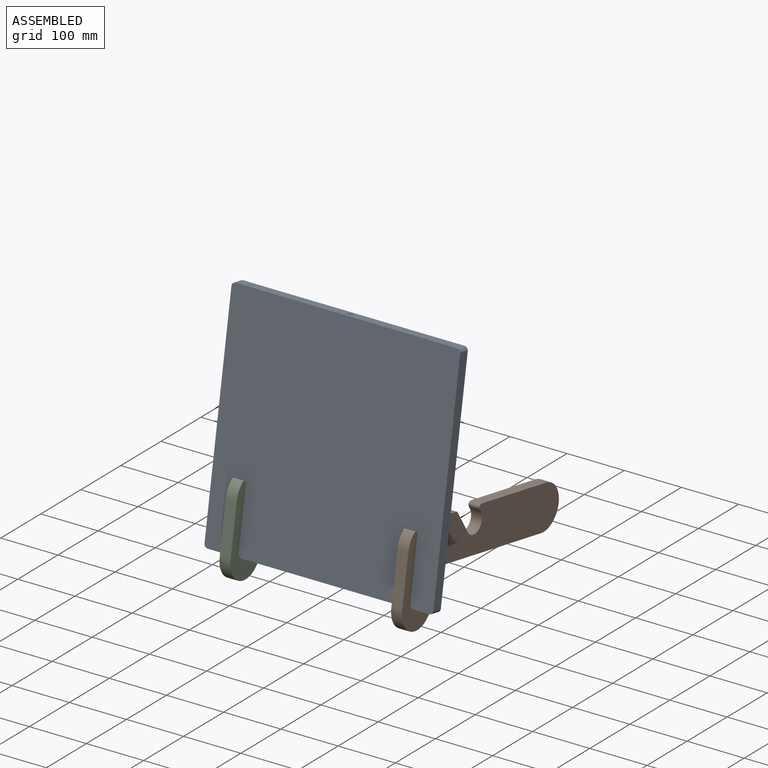
[diagram: assembled view]
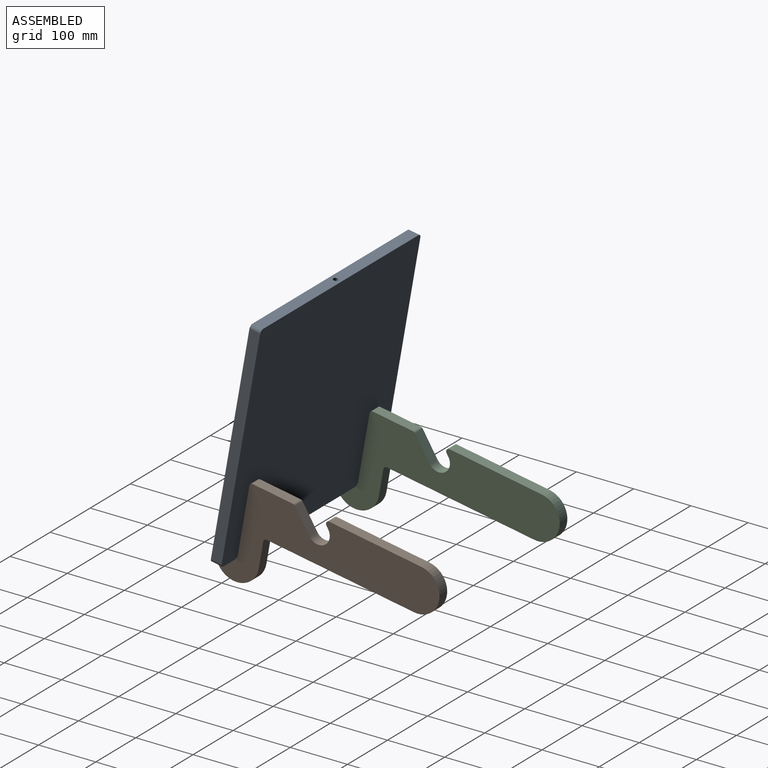
[diagram: assembled view, second angle]
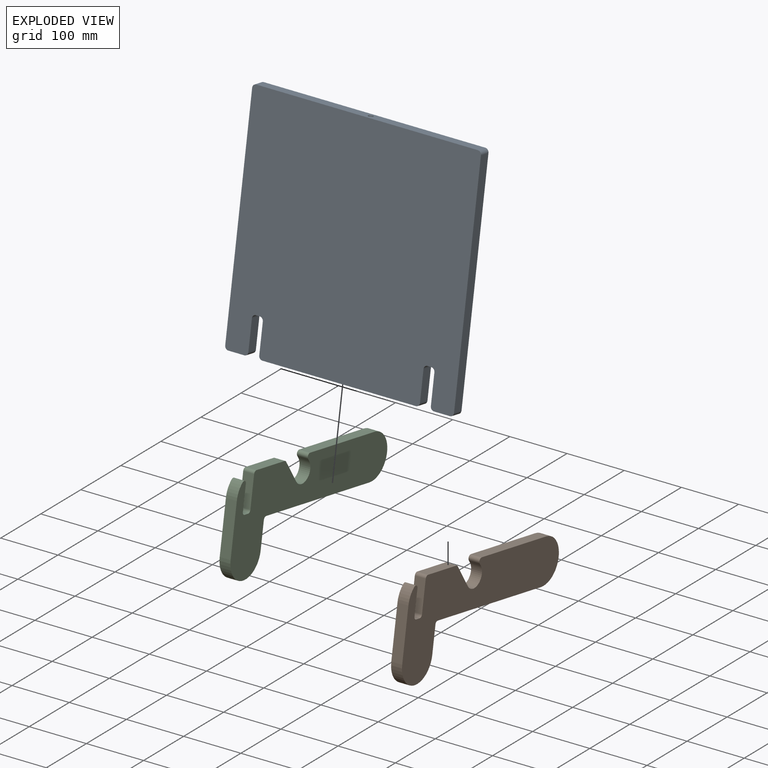
[diagram: exploded view]
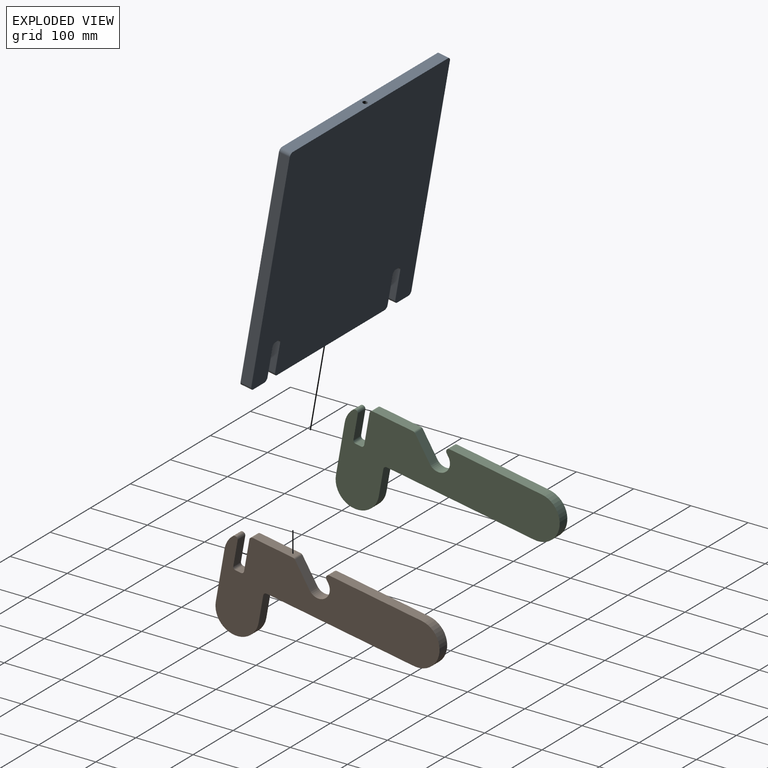
[diagram: exploded view, second angle]
ASSEMBLY  parts=3 mates=2
PART A: 28 faces, bbox 400x19.1x400 mm
  f0: cylinder r=6.35mm len=19.05mm, axis (0,1,0), area 190mm2, adj f1,f23,f24,f25
  f1: plane 50.8x19.05mm, normal (-1,0,0), area 967.7mm2, adj f0,f2,f24,f25
  f2: cylinder r=6.35mm len=19.05mm, axis (0,1,0), area 190mm2, adj f1,f3,f24,f25
  f3: plane 268.25x19.05mm, normal (0,0,-1), area 5110.2mm2, adj f2,f4,f24,f25
  f4: cylinder r=6.35mm len=19.05mm, axis (0,1,0), area 190mm2, adj f3,f5,f24,f25
  f5: plane 50.8x19.05mm, normal (1,0,0), area 967.7mm2, adj f4,f6,f24,f25
  f6: cylinder r=6.35mm len=19.05mm, axis (0,1,0), area 190mm2, adj f5,f7,f24,f25
  f7: plane 19.05x6.35mm, normal (0,0,-1), area 121mm2, adj f6,f8,f24,f25
  f8: cylinder r=6.35mm len=19.05mm, axis (0,1,0), area 190mm2, adj f7,f9,f24,f25
  f9: plane 50.8x19.05mm, normal (-1,0,0), area 967.7mm2, adj f8,f10,f24,f25
  f10: cylinder r=6.35mm len=19.05mm, axis (0,1,0), area 190mm2, adj f9,f11,f24,f25
  f11: plane 27.78x19.05mm, normal (0,0,-1), area 529.1mm2, adj f10,f12,f24,f25
  f12: cylinder r=6.35mm len=19.05mm, axis (0,1,0), area 190mm2, adj f11,f13,f24,f25
  f13: plane 387.3x19.05mm, normal (1,0,0), area 7378.1mm2, adj f12,f14,f24,f25
  f14: cylinder r=6.35mm len=19.05mm, axis (0,1,0), area 190mm2, adj f13,f15,f24,f25
  f15: plane 387.3x19.05mm, normal (0,0,1), area 7323.5mm2, adj f14,f16,f24,f25,f26
  f16: cylinder r=6.35mm len=19.05mm, axis (0,1,0), area 190mm2, adj f15,f17,f24,f25
  f17: plane 387.3x19.05mm, normal (-1,0,0), area 7378.1mm2, adj f16,f18,f24,f25
  f18: cylinder r=6.35mm len=19.05mm, axis (0,1,0), area 190mm2, adj f17,f19,f24,f25
  f19: plane 27.78x19.05mm, normal (0,0,-1), area 529.1mm2, adj f18,f20,f24,f25
  f20: cylinder r=6.35mm len=19.05mm, axis (0,1,0), area 190mm2, adj f19,f21,f24,f25
  f21: plane 50.8x19.05mm, normal (1,0,0), area 967.7mm2, adj f20,f22,f24,f25
  f22: cylinder r=6.35mm len=19.05mm, axis (0,1,0), area 190mm2, adj f21,f23,f24,f25
  f23: plane 19.05x6.35mm, normal (0,0,-1), area 121mm2, adj f0,f22,f24,f25
  f24: plane 400x400mm, normal (0,-1,0), area 157546mm2, adj f0,f1,f2,f3,f4,f5,f6,f7
  f25: plane 400x400mm, normal (0,1,0), area 157546mm2, adj f0,f1,f2,f3,f4,f5,f6,f7
  f26: cylinder r=4.17mm len=76.2mm, axis (0,0,1), area 1995.2mm2, adj f15,f27
  f27: plane 8.33x8.33mm, normal (0,0,1), area 54.6mm2, adj f26
PART B: 23 faces, bbox 19.1x387.6x164.2 mm
  f0: plane 42.7x19.05mm, normal (0,1,-0.09), area 816.5mm2, adj f1,f20,f21,f22
  f1: cylinder r=5.08mm len=19.05mm, axis (-1,0,0), area 231.3mm2, adj f0,f2,f21,f22
  f2: cylinder r=38.1mm len=25.02mm, axis (-1,0,0), area 545.3mm2, adj f1,f3,f21,f22
  f3: plane 88.56x19.05mm, normal (0,-1,0.09), area 1693.5mm2, adj f2,f4,f21,f22
  f4: cylinder r=38.1mm len=76.06mm, axis (-1,0,0), area 2280.2mm2, adj f3,f5,f21,f22
  f5: plane 45.55x19.05mm, normal (0,1,-0.09), area 871mm2, adj f4,f6,f21,f22
  f6: cylinder r=5.08mm len=19.05mm, axis (-1,0,0), area 152mm2, adj f5,f7,f21,f22
  f7: plane 260.62x22.8mm, normal (0,-0.09,-1), area 4983.9mm2, adj f6,f8,f21,f22
  f8: cylinder r=38.1mm len=76.06mm, axis (-1,0,0), area 2280.2mm2, adj f7,f9,f21,f22
  f9: plane 162.96x19.05mm, normal (0,0.09,1), area 3116.2mm2, adj f8,f10,f21,f22
  f10: cylinder r=5.08mm len=19.05mm, axis (-1,0,0), area 222.4mm2, adj f9,f11,f21,f22
  f11: plane 19.05x4.6mm, normal (0,-0.8,-0.6), area 109.2mm2, adj f10,f12,f21,f22
  f12: cylinder r=19.05mm len=34.33mm, axis (-1,0,0), area 1140.1mm2, adj f11,f13,f21,f22
  f13: plane 39.04x29.05mm, normal (0,0.8,0.6), area 927mm2, adj f12,f14,f21,f22
  f14: cylinder r=5.08mm len=19.05mm, axis (-1,0,0), area 81.7mm2, adj f13,f15,f21,f22
  f15: plane 71.28x19.05mm, normal (0,0.09,1), area 1363mm2, adj f14,f16,f21,f22
  f16: cylinder r=5.08mm len=19.05mm, axis (-1,0,0), area 152mm2, adj f15,f17,f21,f22
  f17: plane 53.14x19.05mm, normal (0,-1,0.09), area 1016.1mm2, adj f16,f18,f21,f22
  f18: cylinder r=5.08mm len=19.05mm, axis (-1,0,0), area 152mm2, adj f17,f19,f21,f22
  f19: plane 19.05x8.86mm, normal (0,0.09,1), area 169.4mm2, adj f18,f20,f21,f22
  f20: cylinder r=5.08mm len=19.05mm, axis (-1,0,0), area 152mm2, adj f0,f19,f21,f22
  f21: plane 387.59x164.19mm, normal (1,0,0), area 31160.8mm2, adj f0,f1,f2,f3,f4,f5,f6,f7
  f22: plane 387.59x164.19mm, normal (-1,0,0), area 31160.8mm2, adj f0,f1,f2,f3,f4,f5,f6,f7
PART C: same geometry as B
PLACE A rot(axis=(-1,0,0),10deg) t=(1.69,10.19,-0.48)mm fixed
PLACE B rot(axis=(-1,0,0),5deg) t=(142.17,174.57,-676.35)mm
PLACE C rot(axis=(-1,0,0),5deg) t=(-157.83,174.57,-676.35)mm
MATE fastened A.f23 <-> C.f19  axis (0,-0.17,-0.98) through (-148.31,11.84,63.71)mm
MATE fastened A.f7 <-> B.f19  axis (0,-0.17,-0.98) through (151.69,11.84,63.71)mm
